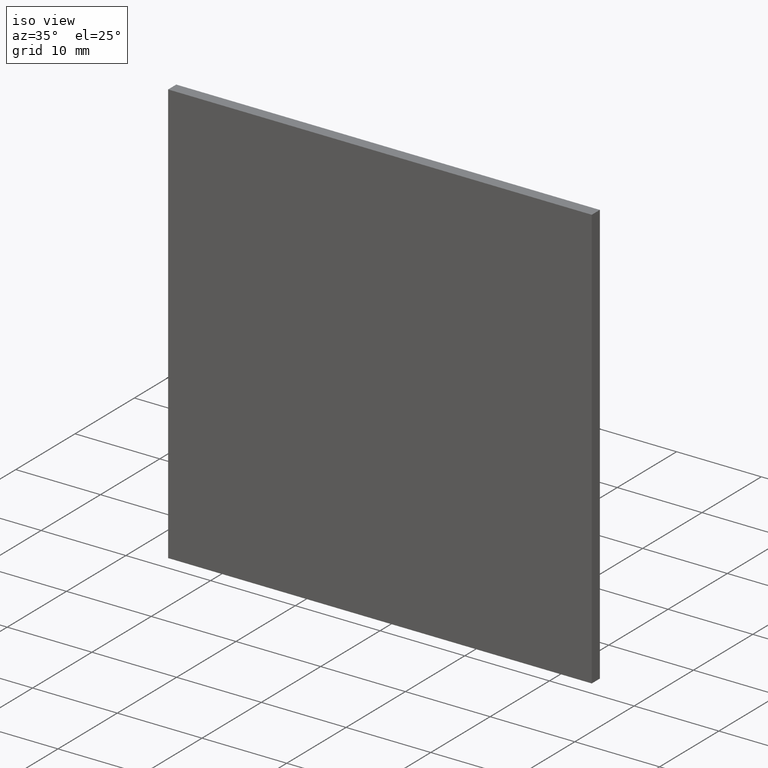
[diagram: clean part render]
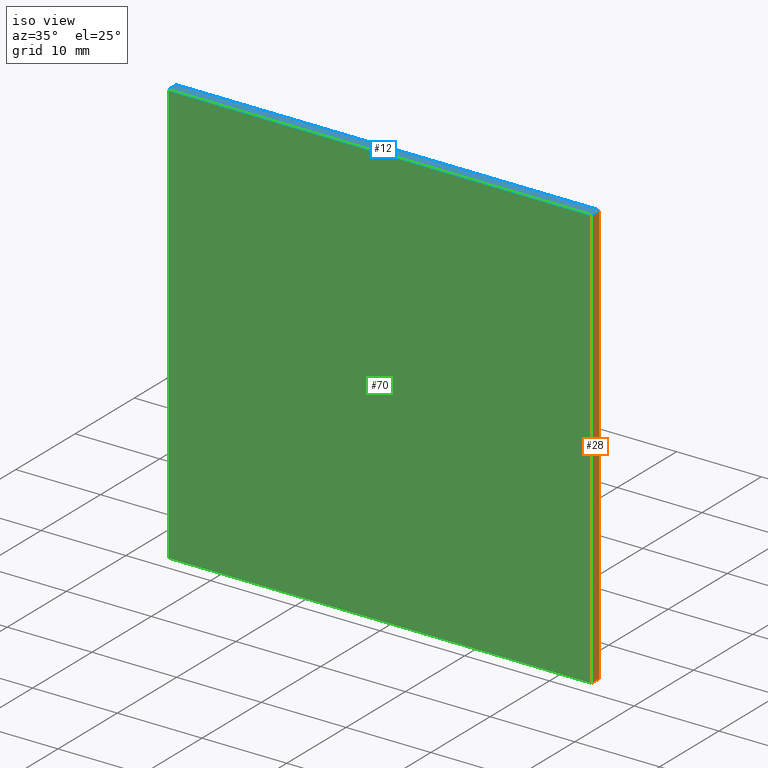
[diagram: same view with three faces highlighted in distinct colors, each labeled with its STEP entity id]
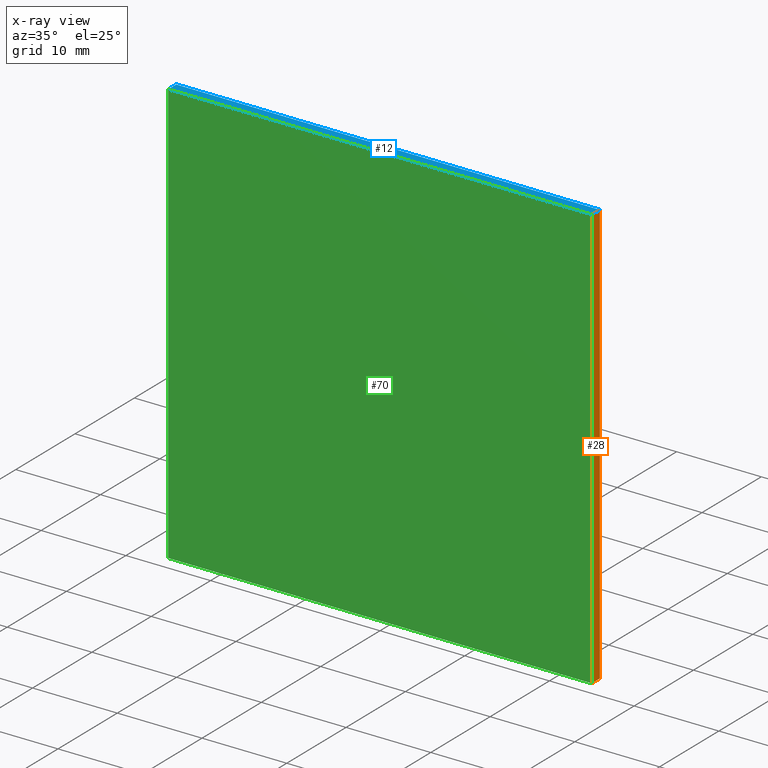
[diagram: x-ray of the same camera — body ghosted, the three highlighted faces saturated]
A machine part, iso view with three faces highlighted in distinct colors.
The next image is the same camera in x-ray (body ghosted, the three faces saturated) — at least one of them is partly hidden behind the body in this view.
Their STEP definitions:

[orange] entity #28 — the highlighted planar face has unit normal (-1, 0, 0).
#6 = AXIS2_PLACEMENT_3D ( 'NONE', #182, #25, #20 ) ;
#7 = VECTOR ( 'NONE', #71, 1000.000000000000000 ) ;
#16 = ORIENTED_EDGE ( 'NONE', *, *, #63, .T. ) ;
#20 = DIRECTION ( 'NONE',  ( 0.0000000000000000000, 0.0000000000000000000, 1.000000000000000000 ) ) ;
#24 = VECTOR ( 'NONE', #75, 1000.000000000000000 ) ;
#25 = DIRECTION ( 'NONE',  ( -1.000000000000000000, 0.0000000000000000000, 0.0000000000000000000 ) ) ;
#28 = ADVANCED_FACE ( 'NONE', ( #151 ), #123, .F. ) ;
#34 = CARTESIAN_POINT ( 'NONE',  ( 24.99999999999999600, 0.0000000000000000000, -25.00000000000000000 ) ) ;
#35 = VECTOR ( 'NONE', #187, 1000.000000000000000 ) ;
#42 = LINE ( 'NONE', #60, #7 ) ;
#46 = CARTESIAN_POINT ( 'NONE',  ( 24.99999999999999600, 0.0000000000000000000, 25.00000000000000000 ) ) ;
#53 = VERTEX_POINT ( 'NONE', #155 ) ;
#54 = DIRECTION ( 'NONE',  ( -0.0000000000000000000, -1.000000000000000000, -0.0000000000000000000 ) ) ;
#60 = CARTESIAN_POINT ( 'NONE',  ( 24.99999999999999600, 0.0000000000000000000, 25.00000000000000000 ) ) ;
#63 = EDGE_CURVE ( 'NONE', #200, #173, #42, .T. ) ;
#71 = DIRECTION ( 'NONE',  ( 0.0000000000000000000, 0.0000000000000000000, -1.000000000000000000 ) ) ;
#72 = EDGE_CURVE ( 'NONE', #53, #116, #194, .T. ) ;
#75 = DIRECTION ( 'NONE',  ( -0.0000000000000000000, -1.000000000000000000, -0.0000000000000000000 ) ) ;
#86 = EDGE_LOOP ( 'NONE', ( #16, #161, #97, #195 ) ) ;
#97 = ORIENTED_EDGE ( 'NONE', *, *, #72, .F. ) ;
#102 = VECTOR ( 'NONE', #54, 1000.000000000000000 ) ;
#107 = LINE ( 'NONE', #163, #24 ) ;
#116 = VERTEX_POINT ( 'NONE', #124 ) ;
#123 = PLANE ( 'NONE',  #6 ) ;
#124 = CARTESIAN_POINT ( 'NONE',  ( 24.99999999999999600, 1.360000000000000100, -25.00000000000000000 ) ) ;
#129 = LINE ( 'NONE', #142, #102 ) ;
#142 = CARTESIAN_POINT ( 'NONE',  ( 24.99999999999999600, 1.360000000000000100, 25.00000000000000000 ) ) ;
#151 = FACE_OUTER_BOUND ( 'NONE', #86, .T. ) ;
#155 = CARTESIAN_POINT ( 'NONE',  ( 24.99999999999999600, 1.360000000000000100, 25.00000000000000000 ) ) ;
#161 = ORIENTED_EDGE ( 'NONE', *, *, #176, .F. ) ;
#163 = CARTESIAN_POINT ( 'NONE',  ( 24.99999999999999600, 1.360000000000000100, -25.00000000000000000 ) ) ;
#173 = VERTEX_POINT ( 'NONE', #34 ) ;
#176 = EDGE_CURVE ( 'NONE', #116, #173, #107, .T. ) ;
#180 = EDGE_CURVE ( 'NONE', #53, #200, #129, .T. ) ;
#182 = CARTESIAN_POINT ( 'NONE',  ( 24.99999999999999600, 1.360000000000000100, 25.00000000000000000 ) ) ;
#187 = DIRECTION ( 'NONE',  ( 0.0000000000000000000, 0.0000000000000000000, -1.000000000000000000 ) ) ;
#188 = CARTESIAN_POINT ( 'NONE',  ( 24.99999999999999600, 1.360000000000000100, 25.00000000000000000 ) ) ;
#194 = LINE ( 'NONE', #188, #35 ) ;
#195 = ORIENTED_EDGE ( 'NONE', *, *, #180, .T. ) ;
#200 = VERTEX_POINT ( 'NONE', #46 ) ;

[blue] entity #12 — the highlighted planar face has unit normal (0, 0, -1).
#10 = ORIENTED_EDGE ( 'NONE', *, *, #180, .F. ) ;
#12 = ADVANCED_FACE ( 'NONE', ( #125 ), #100, .F. ) ;
#18 = VERTEX_POINT ( 'NONE', #43 ) ;
#19 = LINE ( 'NONE', #150, #88 ) ;
#26 = EDGE_CURVE ( 'NONE', #18, #200, #175, .T. ) ;
#32 = EDGE_CURVE ( 'NONE', #91, #18, #149, .T. ) ;
#37 = ORIENTED_EDGE ( 'NONE', *, *, #95, .F. ) ;
#43 = CARTESIAN_POINT ( 'NONE',  ( -25.00000000000000400, 0.0000000000000000000, 25.00000000000000000 ) ) ;
#46 = CARTESIAN_POINT ( 'NONE',  ( 24.99999999999999600, 0.0000000000000000000, 25.00000000000000000 ) ) ;
#53 = VERTEX_POINT ( 'NONE', #155 ) ;
#54 = DIRECTION ( 'NONE',  ( -0.0000000000000000000, -1.000000000000000000, -0.0000000000000000000 ) ) ;
#61 = EDGE_LOOP ( 'NONE', ( #178, #10, #37, #135 ) ) ;
#88 = VECTOR ( 'NONE', #134, 1000.000000000000000 ) ;
#91 = VERTEX_POINT ( 'NONE', #193 ) ;
#92 = DIRECTION ( 'NONE',  ( 0.0000000000000000000, 0.0000000000000000000, -1.000000000000000000 ) ) ;
#95 = EDGE_CURVE ( 'NONE', #91, #53, #19, .T. ) ;
#100 = PLANE ( 'NONE',  #138 ) ;
#101 = DIRECTION ( 'NONE',  ( -0.0000000000000000000, -1.000000000000000000, -0.0000000000000000000 ) ) ;
#102 = VECTOR ( 'NONE', #54, 1000.000000000000000 ) ;
#105 = CARTESIAN_POINT ( 'NONE',  ( -25.00000000000000400, 1.360000000000000100, 25.00000000000000000 ) ) ;
#112 = DIRECTION ( 'NONE',  ( 1.000000000000000000, 0.0000000000000000000, 0.0000000000000000000 ) ) ;
#122 = DIRECTION ( 'NONE',  ( -1.000000000000000000, 0.0000000000000000000, -0.0000000000000000000 ) ) ;
#125 = FACE_OUTER_BOUND ( 'NONE', #61, .T. ) ;
#129 = LINE ( 'NONE', #142, #102 ) ;
#134 = DIRECTION ( 'NONE',  ( 1.000000000000000000, 0.0000000000000000000, 0.0000000000000000000 ) ) ;
#135 = ORIENTED_EDGE ( 'NONE', *, *, #32, .T. ) ;
#138 = AXIS2_PLACEMENT_3D ( 'NONE', #169, #92, #122 ) ;
#141 = VECTOR ( 'NONE', #112, 1000.000000000000000 ) ;
#142 = CARTESIAN_POINT ( 'NONE',  ( 24.99999999999999600, 1.360000000000000100, 25.00000000000000000 ) ) ;
#149 = LINE ( 'NONE', #105, #168 ) ;
#150 = CARTESIAN_POINT ( 'NONE',  ( -25.00000000000000400, 1.360000000000000100, 25.00000000000000000 ) ) ;
#155 = CARTESIAN_POINT ( 'NONE',  ( 24.99999999999999600, 1.360000000000000100, 25.00000000000000000 ) ) ;
#157 = CARTESIAN_POINT ( 'NONE',  ( -25.00000000000000400, 0.0000000000000000000, 25.00000000000000000 ) ) ;
#168 = VECTOR ( 'NONE', #101, 1000.000000000000000 ) ;
#169 = CARTESIAN_POINT ( 'NONE',  ( -25.00000000000000400, 1.360000000000000100, 25.00000000000000000 ) ) ;
#175 = LINE ( 'NONE', #157, #141 ) ;
#178 = ORIENTED_EDGE ( 'NONE', *, *, #26, .T. ) ;
#180 = EDGE_CURVE ( 'NONE', #53, #200, #129, .T. ) ;
#193 = CARTESIAN_POINT ( 'NONE',  ( -25.00000000000000400, 1.360000000000000100, 25.00000000000000000 ) ) ;
#200 = VERTEX_POINT ( 'NONE', #46 ) ;

[green] entity #70 — the highlighted planar face has unit normal (0, -1, 0).
#1 = DIRECTION ( 'NONE',  ( 0.0000000000000000000, -0.0000000000000000000, -1.000000000000000000 ) ) ;
#4 = ORIENTED_EDGE ( 'NONE', *, *, #50, .F. ) ;
#5 = AXIS2_PLACEMENT_3D ( 'NONE', #132, #202, #1 ) ;
#7 = VECTOR ( 'NONE', #71, 1000.000000000000000 ) ;
#18 = VERTEX_POINT ( 'NONE', #43 ) ;
#23 = EDGE_CURVE ( 'NONE', #173, #199, #47, .T. ) ;
#26 = EDGE_CURVE ( 'NONE', #18, #200, #175, .T. ) ;
#34 = CARTESIAN_POINT ( 'NONE',  ( 24.99999999999999600, 0.0000000000000000000, -25.00000000000000000 ) ) ;
#36 = CARTESIAN_POINT ( 'NONE',  ( -25.00000000000000400, 0.0000000000000000000, 25.00000000000000000 ) ) ;
#40 = CARTESIAN_POINT ( 'NONE',  ( -25.00000000000000400, 0.0000000000000000000, -25.00000000000000000 ) ) ;
#42 = LINE ( 'NONE', #60, #7 ) ;
#43 = CARTESIAN_POINT ( 'NONE',  ( -25.00000000000000400, 0.0000000000000000000, 25.00000000000000000 ) ) ;
#46 = CARTESIAN_POINT ( 'NONE',  ( 24.99999999999999600, 0.0000000000000000000, 25.00000000000000000 ) ) ;
#47 = LINE ( 'NONE', #40, #68 ) ;
#50 = EDGE_CURVE ( 'NONE', #199, #18, #146, .T. ) ;
#60 = CARTESIAN_POINT ( 'NONE',  ( 24.99999999999999600, 0.0000000000000000000, 25.00000000000000000 ) ) ;
#62 = CARTESIAN_POINT ( 'NONE',  ( -25.00000000000000400, 0.0000000000000000000, -25.00000000000000000 ) ) ;
#63 = EDGE_CURVE ( 'NONE', #200, #173, #42, .T. ) ;
#68 = VECTOR ( 'NONE', #190, 1000.000000000000000 ) ;
#70 = ADVANCED_FACE ( 'NONE', ( #160 ), #120, .T. ) ;
#71 = DIRECTION ( 'NONE',  ( 0.0000000000000000000, 0.0000000000000000000, -1.000000000000000000 ) ) ;
#99 = ORIENTED_EDGE ( 'NONE', *, *, #26, .F. ) ;
#110 = ORIENTED_EDGE ( 'NONE', *, *, #63, .F. ) ;
#112 = DIRECTION ( 'NONE',  ( 1.000000000000000000, 0.0000000000000000000, 0.0000000000000000000 ) ) ;
#117 = EDGE_LOOP ( 'NONE', ( #110, #99, #4, #145 ) ) ;
#120 = PLANE ( 'NONE',  #5 ) ;
#132 = CARTESIAN_POINT ( 'NONE',  ( 0.0000000000000000000, 0.0000000000000000000, 0.0000000000000000000 ) ) ;
#141 = VECTOR ( 'NONE', #112, 1000.000000000000000 ) ;
#145 = ORIENTED_EDGE ( 'NONE', *, *, #23, .F. ) ;
#146 = LINE ( 'NONE', #36, #162 ) ;
#157 = CARTESIAN_POINT ( 'NONE',  ( -25.00000000000000400, 0.0000000000000000000, 25.00000000000000000 ) ) ;
#160 = FACE_OUTER_BOUND ( 'NONE', #117, .T. ) ;
#162 = VECTOR ( 'NONE', #192, 1000.000000000000000 ) ;
#173 = VERTEX_POINT ( 'NONE', #34 ) ;
#175 = LINE ( 'NONE', #157, #141 ) ;
#190 = DIRECTION ( 'NONE',  ( -1.000000000000000000, -0.0000000000000000000, -0.0000000000000000000 ) ) ;
#192 = DIRECTION ( 'NONE',  ( -0.0000000000000000000, -0.0000000000000000000, 1.000000000000000000 ) ) ;
#199 = VERTEX_POINT ( 'NONE', #62 ) ;
#200 = VERTEX_POINT ( 'NONE', #46 ) ;
#202 = DIRECTION ( 'NONE',  ( 0.0000000000000000000, -1.000000000000000000, 0.0000000000000000000 ) ) ;